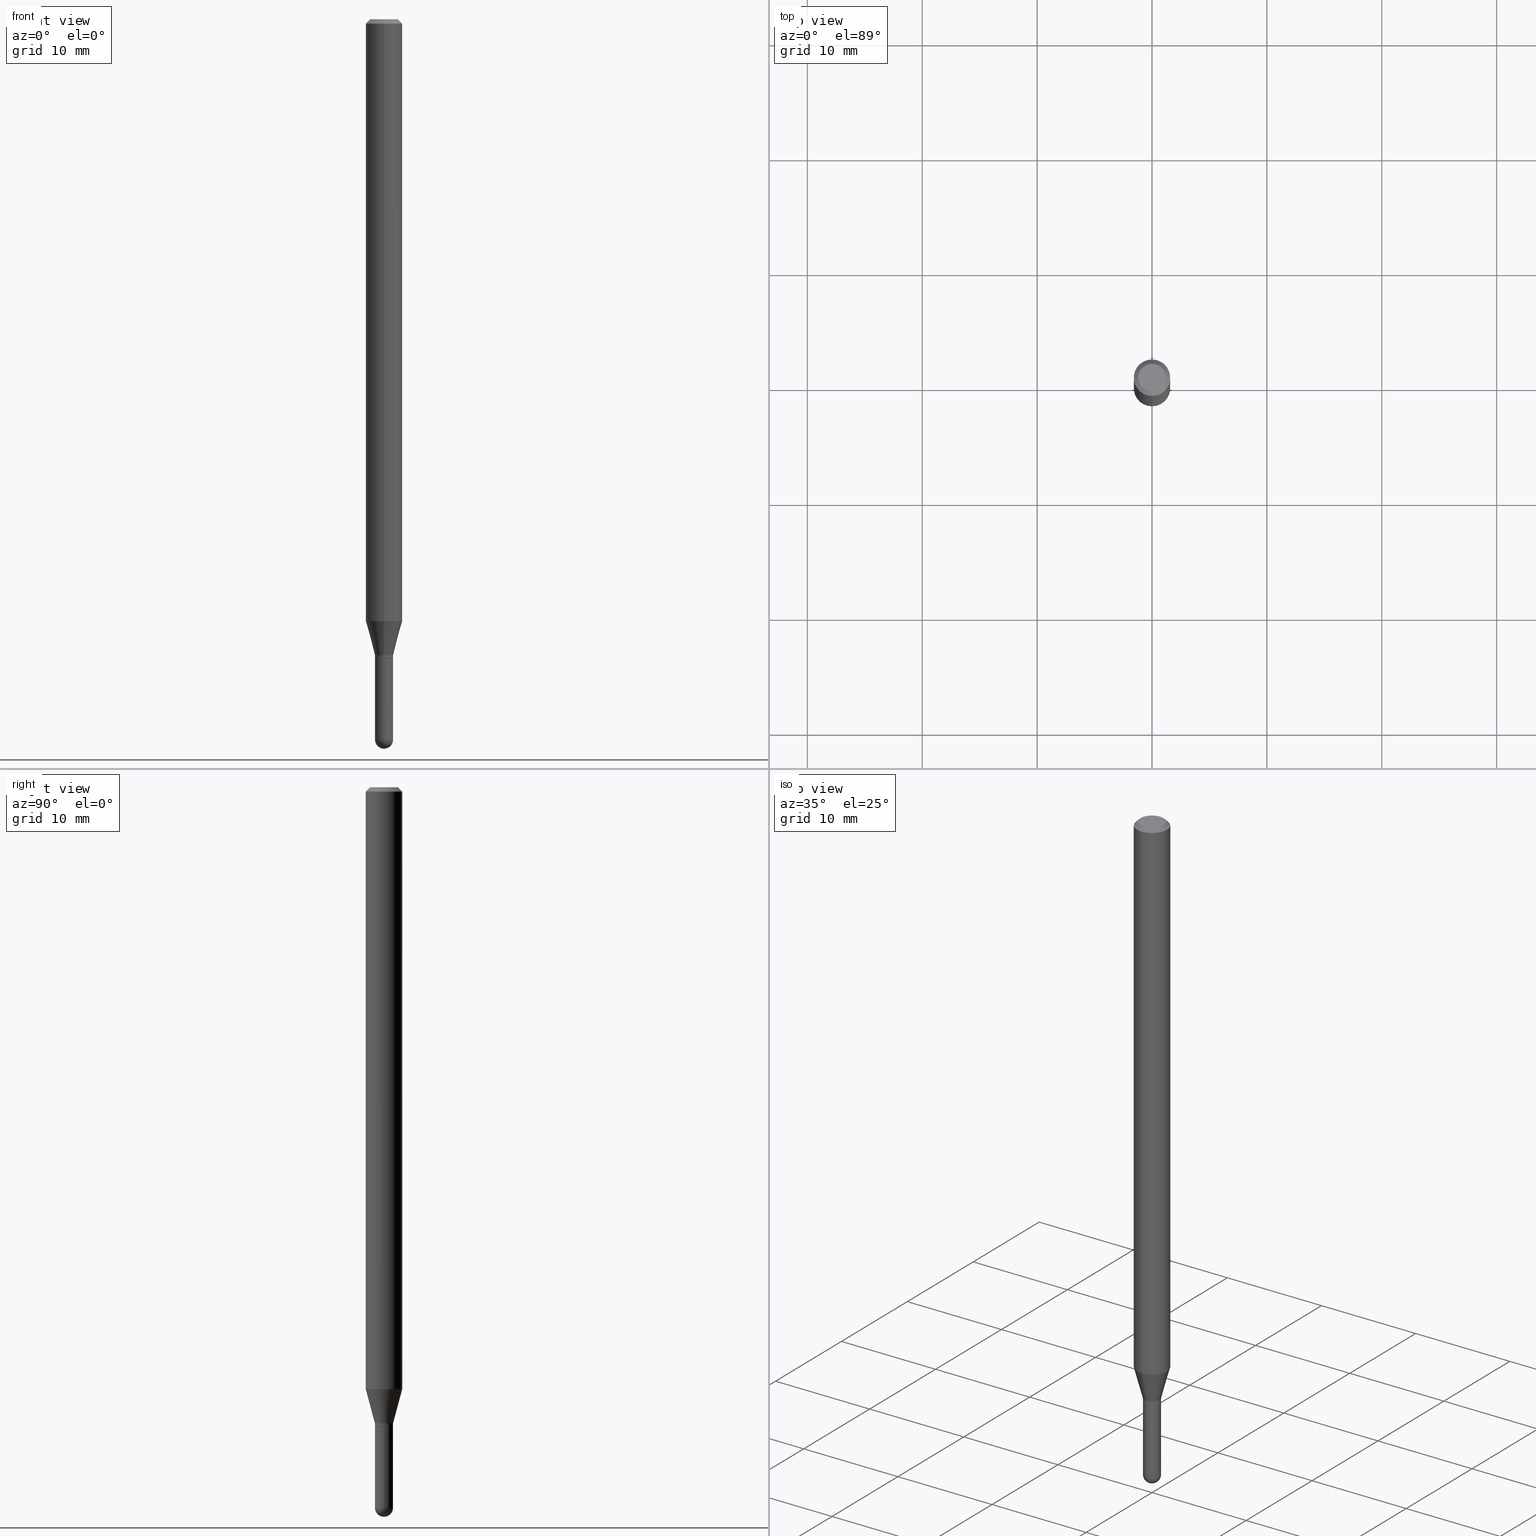
[diagram: canonical four-view strip — front | top / right | iso, engineering-drawing reading convention]
A machine part, canonical four-view strip (front | top / right | iso — engineering-drawing reading convention). The complete STEP part file that produces these views, byte-faithful:
ISO-10303-21;
HEADER;
FILE_DESCRIPTION (( 'STEP AP203' ),
    '1' );
FILE_NAME ('00965.STEP',
    '2024-03-07T19:17:26',
    ( '' ),
    ( '' ),
    'SwSTEP 2.0',
    'SolidWorks 2023',
    '' );
FILE_SCHEMA (( 'CONFIG_CONTROL_DESIGN' ));
ENDSEC;

DATA;
#1 = LENGTH_MEASURE_WITH_UNIT ( LENGTH_MEASURE( 0.02539999999999999897 ), #42 );
#2 = APPROVAL ( #124, 'UNSPECIFIED' ) ;
#3 =( NAMED_UNIT ( * ) PLANE_ANGLE_UNIT ( ) SI_UNIT ( $, .RADIAN. ) );
#4 = AXIS2_PLACEMENT_3D ( 'NONE', #187, #263, #79 ) ;
#5 = CIRCLE ( 'NONE', #385, 0.03099999999999987835 ) ;
#6 = DIRECTION ( 'NONE',  ( 0.000000000000000000, 0.000000000000000000, 1.000000000000000000 ) ) ;
#7 = ORIENTED_EDGE ( 'NONE', *, *, #144, .T. ) ;
#8 = APPLICATION_PROTOCOL_DEFINITION ( 'international standard', 'config_control_design', 1994, #213 ) ;
#9 = ADVANCED_FACE ( 'NONE', ( #186 ), #339, .T. ) ;
#10 = EDGE_LOOP ( 'NONE', ( #139, #216, #464, #363 ) ) ;
#11 = EDGE_LOOP ( 'NONE', ( #498, #368, #67, #395, #334 ) ) ;
#12 = APPROVAL_DATE_TIME ( #326, #202 ) ;
#13 = DIRECTION ( 'NONE',  ( -6.982962677686265922E-15, -1.000000000000000000, 4.370956789862821150E-15 ) ) ;
#14 = DATE_AND_TIME ( #322, #198 ) ;
#15 = DIRECTION ( 'NONE',  ( 1.000000000000000000, -6.982962677686270655E-15, 0.000000000000000000 ) ) ;
#16 = DATE_AND_TIME ( #236, #490 ) ;
#17 = DIRECTION ( 'NONE',  ( -6.982962677686265922E-15, -1.000000000000000000, 0.000000000000000000 ) ) ;
#18 = VERTEX_POINT ( 'NONE', #35 ) ;
#19 = CARTESIAN_POINT ( 'NONE',  ( -2.164718430082737148E-16, -0.03099999999999992345, 1.082354158746436707E-16 ) ) ;
#20 = FACE_OUTER_BOUND ( 'NONE', #506, .T. ) ;
#21 = APPROVAL_PERSON_ORGANIZATION ( #97, #202, #443 ) ;
#22 = CARTESIAN_POINT ( 'NONE',  ( 5.331146826923287692E-29, -7.611393761507219858E-15, -2.180000000000000160 ) ) ;
#23 = EDGE_CURVE ( 'NONE', #309, #37, #227, .T. ) ;
#24 = DIRECTION ( 'NONE',  ( -6.982962677686265922E-15, -1.000000000000000000, 0.000000000000000000 ) ) ;
#25 = DIRECTION ( 'NONE',  ( -2.445468806185136597E-29, 3.491481338843145583E-15, 1.000000000000000000 ) ) ;
#26 = CARTESIAN_POINT ( 'NONE',  ( 3.668220293754557539E-31, -5.237197542321484358E-17, -0.01500000000000000812 ) ) ;
#27 = AXIS2_PLACEMENT_3D ( 'NONE', #191, #352, #492 ) ;
#28 = AXIS2_PLACEMENT_3D ( 'NONE', #431, #264, #344 ) ;
#29 = ORIENTED_EDGE ( 'NONE', *, *, #215, .F. ) ;
#30 = CIRCLE ( 'NONE', #239, 0.03099999999999999978 ) ;
#31 = CARTESIAN_POINT ( 'NONE',  ( 6.035211466974647334E-29, -8.624263830681084699E-15, -2.469000000000000306 ) ) ;
#32 = FACE_OUTER_BOUND ( 'NONE', #435, .T. ) ;
#33 = ADVANCED_FACE ( 'NONE', ( #510 ), #184, .T. ) ;
#34 = CARTESIAN_POINT ( 'NONE',  ( 6.035211466974647334E-29, -8.624263830681084699E-15, -2.469000000000000306 ) ) ;
#35 = CARTESIAN_POINT ( 'NONE',  ( 4.440892098501133005E-16, 0.06249999999999995143, -0.01500000000000022669 ) ) ;
#36 = CARTESIAN_POINT ( 'NONE',  ( 0.000000000000000000, 0.000000000000000000, 0.000000000000000000 ) ) ;
#37 = VERTEX_POINT ( 'NONE', #300 ) ;
#38 = CARTESIAN_POINT ( 'NONE',  ( 0.000000000000000000, 0.000000000000000000, 0.000000000000000000 ) ) ;
#39 = CARTESIAN_POINT ( 'NONE',  ( 3.840629472727447874E-16, 0.04749999999999999362, -1.747056831868805136E-16 ) ) ;
#40 = CLOSED_SHELL ( 'NONE', ( #451, #86, #188, #444, #33 ) ) ;
#41 = ORIENTED_EDGE ( 'NONE', *, *, #469, .T. ) ;
#42 =( LENGTH_UNIT ( ) NAMED_UNIT ( * ) SI_UNIT ( $, .METRE. ) );
#43 = ORIENTED_EDGE ( 'NONE', *, *, #333, .T. ) ;
#44 = APPLICATION_PROTOCOL_DEFINITION ( 'international standard', 'config_control_design', 1994, #52 ) ;
#45 = EDGE_CURVE ( 'NONE', #226, #18, #277, .T. ) ;
#46 = ORIENTED_EDGE ( 'NONE', *, *, #181, .F. ) ;
#47 = AXIS2_PLACEMENT_3D ( 'NONE', #320, #128, #407 ) ;
#48 = CIRCLE ( 'NONE', #441, 0.03099999999999999978 ) ;
#49 = AXIS2_PLACEMENT_3D ( 'NONE', #473, #194, #230 ) ;
#50 = CYLINDRICAL_SURFACE ( 'NONE', #121, 0.06250000000000000000 ) ;
#51 = EDGE_CURVE ( 'NONE', #457, #18, #111, .T. ) ;
#52 = APPLICATION_CONTEXT ( 'configuration controlled 3d designs of mechanical parts and assemblies' ) ;
#53 = VERTEX_POINT ( 'NONE', #467 ) ;
#54 = SHAPE_DEFINITION_REPRESENTATION ( #89, #350 ) ;
#55 = PERSON_AND_ORGANIZATION_ROLE ( 'design_supplier' ) ;
#56 = CARTESIAN_POINT ( 'NONE',  ( -2.164718430082208858E-16, -0.03100000000000767419, -2.189500000000000224 ) ) ;
#57 = CIRCLE ( 'NONE', #311, 0.03099999999999992345 ) ;
#58 = DATE_TIME_ROLE ( 'classification_date' ) ;
#59 = LINE ( 'NONE', #62, #354 ) ;
#60 = ADVANCED_FACE ( 'NONE', ( #471 ), #116, .T. ) ;
#61 = PERSON_AND_ORGANIZATION ( #211, #233 ) ;
#62 = CARTESIAN_POINT ( 'NONE',  ( -4.364351673553916201E-16, -0.06250000000000000000, 2.182165642633950172E-16 ) ) ;
#63 = VERTEX_POINT ( 'NONE', #179 ) ;
#64 = FACE_OUTER_BOUND ( 'NONE', #494, .T. ) ;
#65 = LINE ( 'NONE', #68, #362 ) ;
#66 = VECTOR ( 'NONE', #348, 39.37007874015748143 ) ;
#67 = ORIENTED_EDGE ( 'NONE', *, *, #294, .F. ) ;
#68 = CARTESIAN_POINT ( 'NONE',  ( 2.167155344068840712E-16, 0.03049999999999235267, -2.189999999999999947 ) ) ;
#69 = ORIENTED_EDGE ( 'NONE', *, *, #294, .T. ) ;
#70 = DIRECTION ( 'NONE',  ( -2.445480195836370000E-29, 3.491465028214320670E-15, 1.000000000000000000 ) ) ;
#71 = EDGE_LOOP ( 'NONE', ( #157, #265, #199, #80, #162 ) ) ;
#72 = DIRECTION ( 'NONE',  ( 6.982962677686265922E-15, 1.000000000000000000, 0.000000000000000000 ) ) ;
#73 = CARTESIAN_POINT ( 'NONE',  ( 0.03099999999999999978, -2.164718430082742572E-16, 1.511614800496739984E-30 ) ) ;
#74 = AXIS2_PLACEMENT_3D ( 'NONE', #324, #138, #360 ) ;
#75 = CARTESIAN_POINT ( 'NONE',  ( -0.03099999999999999978, -7.913137530749477307E-15, -2.469000000000000306 ) ) ;
#76 = ORIENTED_EDGE ( 'NONE', *, *, #470, .T. ) ;
#77 = PRODUCT_RELATED_PRODUCT_CATEGORY ( 'detail', '', ( #231 ) ) ;
#78 = VERTEX_POINT ( 'NONE', #255 ) ;
#79 = DIRECTION ( 'NONE',  ( 6.982962677686265922E-15, 1.000000000000000000, 0.000000000000000000 ) ) ;
#80 = ORIENTED_EDGE ( 'NONE', *, *, #23, .T. ) ;
#81 = ORIENTED_EDGE ( 'NONE', *, *, #472, .F. ) ;
#82 = CARTESIAN_POINT ( 'NONE',  ( 5.331146826923287692E-29, -7.611393761507219858E-15, -2.180000000000000160 ) ) ;
#83 = DIRECTION ( 'NONE',  ( -1.807323732225328562E-15, -0.2588190451025179639, 0.9659258262890690894 ) ) ;
#84 = CONICAL_SURFACE ( 'NONE', #361, 0.03099999999999992345, 0.2617993877991500740 ) ;
#85 = CIRCLE ( 'NONE', #384, 0.03049999999999999586 ) ;
#86 = ADVANCED_FACE ( 'NONE', ( #505 ), #509, .T. ) ;
#87 = ADVANCED_FACE ( 'NONE', ( #428 ), #336, .F. ) ;
#88 = ORIENTED_EDGE ( 'NONE', *, *, #507, .T. ) ;
#89 = PRODUCT_DEFINITION_SHAPE ( 'NONE', 'NONE',  #323 ) ;
#90 = AXIS2_PLACEMENT_3D ( 'NONE', #209, #167, #280 ) ;
#91 = DATE_TIME_ROLE ( 'creation_date' ) ;
#92 = COORDINATED_UNIVERSAL_TIME_OFFSET ( 5, 0, .BEHIND. ) ;
#93 = CARTESIAN_POINT ( 'NONE',  ( 0.03099999999999999978, -8.349877621843383680E-15, -2.469000000000000306 ) ) ;
#94 = DIRECTION ( 'NONE',  ( 1.000000000000000000, -6.982962677686270655E-15, 0.000000000000000000 ) ) ;
#95 = VECTOR ( 'NONE', #178, 39.37007874015748143 ) ;
#96 = CARTESIAN_POINT ( 'NONE',  ( -2.164718430082203928E-16, -0.03100000000000753195, -2.180000000000000160 ) ) ;
#97 = PERSON_AND_ORGANIZATION ( #211, #233 ) ;
#98 = DIRECTION ( 'NONE',  ( 1.839019923739598738E-15, 0.2588190451025247363, 0.9659258262890673130 ) ) ;
#99 = DIRECTION ( 'NONE',  ( 6.982962677686265922E-15, 1.000000000000000000, -3.483106191921935554E-15 ) ) ;
#100 = EDGE_CURVE ( 'NONE', #78, #481, #511, .T. ) ;
#101 = VERTEX_POINT ( 'NONE', #39 ) ;
#102 = PLANE ( 'NONE',  #500 ) ;
#103 = VECTOR ( 'NONE', #459, 39.37007874015748143 ) ;
#104 = ORIENTED_EDGE ( 'NONE', *, *, #235, .T. ) ;
#105 = LINE ( 'NONE', #257, #262 ) ;
#106 = DIRECTION ( 'NONE',  ( 1.000000000000000000, -6.982962677686266711E-15, 4.876176775795935232E-29 ) ) ;
#107 = FACE_OUTER_BOUND ( 'NONE', #11, .T. ) ;
#108 = DIRECTION ( 'NONE',  ( -6.982962677686265922E-15, -1.000000000000000000, 3.491465028214320276E-15 ) ) ;
#109 = ORIENTED_EDGE ( 'NONE', *, *, #45, .T. ) ;
#110 = CARTESIAN_POINT ( 'NONE',  ( 2.202682480856832688E-16, 0.03099999999999216924, -2.189500000000000224 ) ) ;
#111 = LINE ( 'NONE', #425, #66 ) ;
#112 = LOCAL_TIME ( 14, 17, 26.00000000000000000, #366 ) ;
#113 = ORIENTED_EDGE ( 'NONE', *, *, #223, .F. ) ;
#114 = AXIS2_PLACEMENT_3D ( 'NONE', #325, #416, #99 ) ;
#115 = CARTESIAN_POINT ( 'NONE',  ( 6.112346507714613972E-29, -8.730601549646543009E-15, -2.500000000000000000 ) ) ;
#116 = CYLINDRICAL_SURFACE ( 'NONE', #173, 0.03099999999999992345 ) ;
#117 = EDGE_LOOP ( 'NONE', ( #342, #46 ) ) ;
#118 = DIRECTION ( 'NONE',  ( -6.982962677686265922E-15, -1.000000000000000000, 3.491465028214320276E-15 ) ) ;
#119 = DIRECTION ( 'NONE',  ( -6.982962677686265922E-15, -1.000000000000000000, 0.000000000000000000 ) ) ;
#120 = UNCERTAINTY_MEASURE_WITH_UNIT (LENGTH_MEASURE( 1.000000000000000082E-05 ), #430, 'distance_accuracy_value', 'NONE');
#121 = AXIS2_PLACEMENT_3D ( 'NONE', #38, #394, #118 ) ;
#122 =( NAMED_UNIT ( * ) SI_UNIT ( $, .STERADIAN. ) SOLID_ANGLE_UNIT ( ) );
#123 = ORIENTED_EDGE ( 'NONE', *, *, #485, .F. ) ;
#124 = APPROVAL_STATUS ( 'not_yet_approved' ) ;
#125 = ORIENTED_EDGE ( 'NONE', *, *, #507, .F. ) ;
#126 = PERSON_AND_ORGANIZATION_ROLE ( 'classification_officer' ) ;
#127 = AXIS2_PLACEMENT_3D ( 'NONE', #214, #462, #108 ) ;
#128 = DIRECTION ( 'NONE',  ( -2.445468806185136597E-29, 3.491481338843145583E-15, 1.000000000000000000 ) ) ;
#129 = CARTESIAN_POINT ( 'NONE',  ( 6.037862482471103495E-29, -8.620467425603728566E-15, -2.469000000000000306 ) ) ;
#130 = CALENDAR_DATE ( 2024, 7, 3 ) ;
#131 = APPROVAL_PERSON_ORGANIZATION ( #195, #2, #274 ) ;
#132 = DIRECTION ( 'NONE',  ( -2.445480195836370000E-29, 3.491465028214320670E-15, 1.000000000000000000 ) ) ;
#133 = CIRCLE ( 'NONE', #27, 0.03099999999999992345 ) ;
#134 = EDGE_LOOP ( 'NONE', ( #317, #76, #81, #417 ) ) ;
#135 = ADVANCED_FACE ( 'NONE', ( #502 ), #197, .T. ) ;
#136 = DIRECTION ( 'NONE',  ( -2.445480195836370000E-29, 3.491465028214320670E-15, 1.000000000000000000 ) ) ;
#137 = ORIENTED_EDGE ( 'NONE', *, *, #365, .T. ) ;
#138 = DIRECTION ( 'NONE',  ( -2.445480195836370000E-29, 3.491465028214320670E-15, 1.000000000000000000 ) ) ;
#139 = ORIENTED_EDGE ( 'NONE', *, *, #483, .T. ) ;
#140 = EDGE_LOOP ( 'NONE', ( #487, #349, #268, #29 ) ) ;
#141 = DIRECTION ( 'NONE',  ( -6.982962677686266711E-15, -1.000000000000000000, 3.491465028214321065E-15 ) ) ;
#142 = LINE ( 'NONE', #297, #103 ) ;
#143 = DIRECTION ( 'NONE',  ( -2.445480195836369720E-29, 3.491465028214321065E-15, 1.000000000000000000 ) ) ;
#144 = EDGE_CURVE ( 'NONE', #53, #226, #142, .T. ) ;
#145 = CIRCLE ( 'NONE', #4, 0.03099999999999987835 ) ;
#146 = CARTESIAN_POINT ( 'NONE',  ( 5.331146826923287692E-29, -7.611393761507219858E-15, -2.180000000000000160 ) ) ;
#147 = CARTESIAN_POINT ( 'NONE',  ( 2.164718430083341860E-16, 0.03099999999999131575, -2.469000000000000306 ) ) ;
#148 = DIRECTION ( 'NONE',  ( 1.000000000000000000, -6.982962677686266711E-15, 4.876176775795935232E-29 ) ) ;
#149 = CARTESIAN_POINT ( 'NONE',  ( 6.035211466974647334E-29, -8.624263830681084699E-15, -2.469000000000000306 ) ) ;
#150 = DIRECTION ( 'NONE',  ( 6.982962677686265922E-15, 1.000000000000000000, 0.000000000000000000 ) ) ;
#151 = CIRCLE ( 'NONE', #450, 0.03099999999999992345 ) ;
#152 = VERTEX_POINT ( 'NONE', #147 ) ;
#153 = VECTOR ( 'NONE', #364, 39.37007874015748143 ) ;
#154 = CARTESIAN_POINT ( 'NONE',  ( 0.000000000000000000, 0.000000000000000000, 0.000000000000000000 ) ) ;
#155 = ADVANCED_FACE ( 'NONE', ( #252 ), #420, .T. ) ;
#156 = ORIENTED_EDGE ( 'NONE', *, *, #508, .T. ) ;
#157 = ORIENTED_EDGE ( 'NONE', *, *, #169, .F. ) ;
#158 = AXIS2_PLACEMENT_3D ( 'NONE', #237, #284, #196 ) ;
#159 = CIRCLE ( 'NONE', #427, 0.03099999999999999978 ) ;
#160 = DIRECTION ( 'NONE',  ( 1.000000000000000000, 0.000000000000000000, 0.000000000000000000 ) ) ;
#161 = APPROVAL ( #449, 'UNSPECIFIED' ) ;
#162 = ORIENTED_EDGE ( 'NONE', *, *, #376, .F. ) ;
#163 = DATE_AND_TIME ( #442, #306 ) ;
#164 = ORIENTED_EDGE ( 'NONE', *, *, #100, .T. ) ;
#165 = ADVANCED_FACE ( 'NONE', ( #32 ), #319, .T. ) ;
#166 = APPROVAL_DATE_TIME ( #16, #2 ) ;
#167 = DIRECTION ( 'NONE',  ( -2.445480195836370000E-29, 3.491465028214320670E-15, 1.000000000000000000 ) ) ;
#168 = FACE_OUTER_BOUND ( 'NONE', #220, .T. ) ;
#169 = EDGE_CURVE ( 'NONE', #397, #63, #204, .T. ) ;
#170 = VERTEX_POINT ( 'NONE', #245 ) ;
#171 = AXIS2_PLACEMENT_3D ( 'NONE', #330, #200, #13 ) ;
#172 = DIRECTION ( 'NONE',  ( -6.982962677686265922E-15, -1.000000000000000000, 3.491465028214321065E-15 ) ) ;
#173 = AXIS2_PLACEMENT_3D ( 'NONE', #36, #305, #392 ) ;
#174 = CC_DESIGN_APPROVAL ( #161, ( #476 ) ) ;
#175 = CARTESIAN_POINT ( 'NONE',  ( 5.355576685545449192E-29, -7.646344132066488554E-15, -2.189999999999999947 ) ) ;
#176 = DIRECTION ( 'NONE',  ( -2.445480195836370000E-29, 3.491465028214320670E-15, 1.000000000000000000 ) ) ;
#177 = DIRECTION ( 'NONE',  ( -1.000000000000000000, 6.982962677686265922E-15, -4.876176775795935793E-29 ) ) ;
#178 = DIRECTION ( 'NONE',  ( 4.937700262164548042E-15, 0.7071067811865451302, -0.7071067811865499042 ) ) ;
#179 = CARTESIAN_POINT ( 'NONE',  ( -0.03099999999999999978, -7.913137530749477307E-15, -2.189999999999999947 ) ) ;
#180 = VECTOR ( 'NONE', #258, 39.37007874015748143 ) ;
#181 = EDGE_CURVE ( 'NONE', #481, #78, #85, .T. ) ;
#182 =( GEOMETRIC_REPRESENTATION_CONTEXT ( 3 ) GLOBAL_UNCERTAINTY_ASSIGNED_CONTEXT ( ( #120 ) ) GLOBAL_UNIT_ASSIGNED_CONTEXT ( ( #430, #3, #122 ) ) REPRESENTATION_CONTEXT ( 'NONE', 'WORKASPACE' ) );
#183 = CYLINDRICAL_SURFACE ( 'NONE', #312, 0.03099999999999999978 ) ;
#184 = CYLINDRICAL_SURFACE ( 'NONE', #484, 0.03099999999999999978 ) ;
#185 = DIRECTION ( 'NONE',  ( 1.000000000000000000, -6.982962677686270655E-15, 0.000000000000000000 ) ) ;
#186 = FACE_OUTER_BOUND ( 'NONE', #351, .T. ) ;
#187 = CARTESIAN_POINT ( 'NONE',  ( 6.035211466974647334E-29, -8.624263830681084699E-15, -2.469000000000000306 ) ) ;
#188 = ADVANCED_FACE ( 'NONE', ( #168 ), #291, .F. ) ;
#189 = ORIENTED_EDGE ( 'NONE', *, *, #144, .F. ) ;
#190 = AXIS2_PLACEMENT_3D ( 'NONE', #303, #463, #225 ) ;
#191 = CARTESIAN_POINT ( 'NONE',  ( 5.354378888783732233E-29, -7.644562679275256159E-15, -2.189500000000000224 ) ) ;
#192 = DIRECTION ( 'NONE',  ( -6.982962677686265922E-15, -1.000000000000000000, 0.000000000000000000 ) ) ;
#193 = VERTEX_POINT ( 'NONE', #96 ) ;
#194 = DIRECTION ( 'NONE',  ( -2.445480195836370000E-29, 3.491465028214320670E-15, 1.000000000000000000 ) ) ;
#195 = PERSON_AND_ORGANIZATION ( #211, #233 ) ;
#196 = DIRECTION ( 'NONE',  ( 6.982962677686265922E-15, 1.000000000000000000, -3.483106191921935554E-15 ) ) ;
#197 = CONICAL_SURFACE ( 'NONE', #432, 0.03099999999999992345, 0.2617993877991500740 ) ;
#198 = LOCAL_TIME ( 14, 17, 26.00000000000000000, #401 ) ;
#199 = ORIENTED_EDGE ( 'NONE', *, *, #250, .T. ) ;
#200 = DIRECTION ( 'NONE',  ( -2.445480195836370000E-29, 3.491465028214320670E-15, 1.000000000000000000 ) ) ;
#201 = ADVANCED_FACE ( 'NONE', ( #20 ), #84, .T. ) ;
#202 = APPROVAL ( #276, 'UNSPECIFIED' ) ;
#203 = DIRECTION ( 'NONE',  ( 5.024295867788190974E-15, 0.7071067811865681119, 0.7071067811865270336 ) ) ;
#204 = LINE ( 'NONE', #446, #298 ) ;
#205 = APPROVAL_DATE_TIME ( #163, #161 ) ;
#206 = EDGE_CURVE ( 'NONE', #212, #193, #499, .T. ) ;
#207 = CC_DESIGN_PERSON_AND_ORGANIZATION_ASSIGNMENT ( #61, #486, ( #323 ) ) ;
#208 = ORIENTED_EDGE ( 'NONE', *, *, #373, .F. ) ;
#209 = CARTESIAN_POINT ( 'NONE',  ( 5.355601628881650426E-29, -7.646308411789361838E-15, -2.189999999999999947 ) ) ;
#210 = CIRCLE ( 'NONE', #219, 0.03099999999999999978 ) ;
#211 = PERSON ( 'UNSPECIFIED', 'UNSPECIFIED', 'UNSPECIFIED', ('UNSPECIFIED'), ('UNSPECIFIED'), ('UNSPECIFIED') ) ;
#212 = VERTEX_POINT ( 'NONE', #56 ) ;
#213 = APPLICATION_CONTEXT ( 'configuration controlled 3d designs of mechanical parts and assemblies' ) ;
#214 = CARTESIAN_POINT ( 'NONE',  ( 0.000000000000000000, 0.000000000000000000, 0.000000000000000000 ) ) ;
#215 = EDGE_CURVE ( 'NONE', #170, #226, #59, .T. ) ;
#216 = ORIENTED_EDGE ( 'NONE', *, *, #412, .T. ) ;
#217 = CARTESIAN_POINT ( 'NONE',  ( 2.166963073829317707E-46, -3.093820102321168662E-32, -8.861094346700290672E-18 ) ) ;
#218 = DIRECTION ( 'NONE',  ( -2.445468806185136597E-29, 3.491481338843145583E-15, 1.000000000000000000 ) ) ;
#219 = AXIS2_PLACEMENT_3D ( 'NONE', #247, #402, #15 ) ;
#220 = EDGE_LOOP ( 'NONE', ( #69, #273 ) ) ;
#221 = ADVANCED_FACE ( 'NONE', ( #241 ), #102, .F. ) ;
#222 = ORIENTED_EDGE ( 'NONE', *, *, #365, .F. ) ;
#223 = EDGE_CURVE ( 'NONE', #18, #226, #426, .T. ) ;
#224 = DIRECTION ( 'NONE',  ( -4.937700262164674260E-15, -0.7071067811865632269, 0.7071067811865319186 ) ) ;
#225 = DIRECTION ( 'NONE',  ( -6.982962677686265922E-15, -1.000000000000000000, 3.491465028214320670E-15 ) ) ;
#226 = VERTEX_POINT ( 'NONE', #248 ) ;
#227 = LINE ( 'NONE', #73, #180 ) ;
#228 = DESIGN_CONTEXT ( 'detailed design', #52, 'design' ) ;
#229 = VERTEX_POINT ( 'NONE', #455 ) ;
#230 = DIRECTION ( 'NONE',  ( -6.982962677686265922E-15, -1.000000000000000000, 4.370956789862821150E-15 ) ) ;
#231 = PRODUCT ( '00965', '00965', '', ( #357 ) ) ;
#232 = ORIENTED_EDGE ( 'NONE', *, *, #412, .F. ) ;
#233 = ORGANIZATION ( 'UNSPECIFIED', 'UNSPECIFIED', '' ) ;
#234 = AXIS2_PLACEMENT_3D ( 'NONE', #387, #383, #119 ) ;
#235 = EDGE_CURVE ( 'NONE', #481, #353, #65, .T. ) ;
#236 = CALENDAR_DATE ( 2024, 7, 3 ) ;
#237 = CARTESIAN_POINT ( 'NONE',  ( 3.668220293754557539E-31, -5.237197542321484358E-17, -0.01500000000000000812 ) ) ;
#238 = PERSON_AND_ORGANIZATION ( #211, #233 ) ;
#239 = AXIS2_PLACEMENT_3D ( 'NONE', #379, #25, #185 ) ;
#240 = CC_DESIGN_SECURITY_CLASSIFICATION ( #476, ( #501 ) ) ;
#241 = FACE_OUTER_BOUND ( 'NONE', #117, .T. ) ;
#242 = CARTESIAN_POINT ( 'NONE',  ( 5.355601628881650426E-29, -7.646308411789361838E-15, -2.189999999999999947 ) ) ;
#243 = PERSON_AND_ORGANIZATION_ROLE ( 'creator' ) ;
#244 = DIRECTION ( 'NONE',  ( -2.445480195836370000E-29, 3.491465028214320670E-15, 1.000000000000000000 ) ) ;
#245 = CARTESIAN_POINT ( 'NONE',  ( -4.364351673553413795E-16, -0.06250000000000723033, -2.062440399561580318 ) ) ;
#246 = ORIENTED_EDGE ( 'NONE', *, *, #51, .F. ) ;
#247 = CARTESIAN_POINT ( 'NONE',  ( 6.037862482471103495E-29, -8.620467425603728566E-15, -2.469000000000000306 ) ) ;
#248 = CARTESIAN_POINT ( 'NONE',  ( -4.364351673553912750E-16, -0.06250000000000005551, -0.01499999999999979128 ) ) ;
#249 = ORIENTED_EDGE ( 'NONE', *, *, #485, .T. ) ;
#250 = EDGE_CURVE ( 'NONE', #229, #309, #261, .T. ) ;
#251 = DIRECTION ( 'NONE',  ( -1.000000000000000000, 7.105427357601001070E-15, -4.926315508542082329E-29 ) ) ;
#252 = FACE_OUTER_BOUND ( 'NONE', #140, .T. ) ;
#253 = MANIFOLD_SOLID_BREP ( 'Body-Move/Copy2[1]', #40 ) ;
#254 = SPHERICAL_SURFACE ( 'NONE', #283, 0.03099999999999987835 ) ;
#255 = CARTESIAN_POINT ( 'NONE',  ( -2.129803616693775335E-16, -0.03050000000000764253, -2.189999999999999947 ) ) ;
#256 = ORIENTED_EDGE ( 'NONE', *, *, #206, .T. ) ;
#257 = CARTESIAN_POINT ( 'NONE',  ( -2.129803616693775335E-16, -0.03050000000000764253, -2.189999999999999947 ) ) ;
#258 = DIRECTION ( 'NONE',  ( -2.445468806185136877E-29, 3.491481338843145188E-15, 1.000000000000000000 ) ) ;
#259 = CC_DESIGN_APPROVAL ( #2, ( #323 ) ) ;
#260 = ADVANCED_FACE ( 'NONE', ( #409 ), #468, .T. ) ;
#261 = CIRCLE ( 'NONE', #307, 0.03099999999999999978 ) ;
#262 = VECTOR ( 'NONE', #224, 39.37007874015748143 ) ;
#263 = DIRECTION ( 'NONE',  ( 1.000000000000000000, -6.982962677686265922E-15, 4.883557194083112340E-29 ) ) ;
#264 = DIRECTION ( 'NONE',  ( 2.445480195836369439E-29, -3.491465028214321065E-15, -1.000000000000000000 ) ) ;
#265 = ORIENTED_EDGE ( 'NONE', *, *, #310, .T. ) ;
#266 = LINE ( 'NONE', #399, #327 ) ;
#267 = DIRECTION ( 'NONE',  ( -2.445480195836370000E-29, 3.491465028214320670E-15, 1.000000000000000000 ) ) ;
#268 = ORIENTED_EDGE ( 'NONE', *, *, #45, .F. ) ;
#269 = AXIS2_PLACEMENT_3D ( 'NONE', #26, #70, #308 ) ;
#270 = CARTESIAN_POINT ( 'NONE',  ( 0.000000000000000000, 0.000000000000000000, 0.000000000000000000 ) ) ;
#271 = VECTOR ( 'NONE', #98, 39.37007874015748854 ) ;
#272 = EDGE_LOOP ( 'NONE', ( #208, #479, #393, #375 ) ) ;
#273 = ORIENTED_EDGE ( 'NONE', *, *, #376, .T. ) ;
#274 = APPROVAL_ROLE ( '' ) ;
#275 = ADVANCED_FACE ( 'NONE', ( #64 ), #398, .T. ) ;
#276 = APPROVAL_STATUS ( 'not_yet_approved' ) ;
#277 = CIRCLE ( 'NONE', #269, 0.06250000000000000000 ) ;
#278 = CC_DESIGN_PERSON_AND_ORGANIZATION_ASSIGNMENT ( #315, #480, ( #231 ) ) ;
#279 = DIRECTION ( 'NONE',  ( -2.445468806185136597E-29, 3.491481338843145583E-15, 1.000000000000000000 ) ) ;
#280 = DIRECTION ( 'NONE',  ( -6.982962677686265922E-15, -1.000000000000000000, 0.000000000000000000 ) ) ;
#281 = DIRECTION ( 'NONE',  ( -2.445468806185136877E-29, 3.491481338843145188E-15, 1.000000000000000000 ) ) ;
#282 = SECURITY_CLASSIFICATION_LEVEL ( 'unclassified' ) ;
#283 = AXIS2_PLACEMENT_3D ( 'NONE', #31, #421, #72 ) ;
#284 = DIRECTION ( 'NONE',  ( 2.445480195836370000E-29, -3.491465028214320670E-15, -1.000000000000000000 ) ) ;
#285 = ORIENTED_EDGE ( 'NONE', *, *, #483, .F. ) ;
#286 = AXIS2_PLACEMENT_3D ( 'NONE', #329, #369, #177 ) ;
#287 = DIRECTION ( 'NONE',  ( -6.982962677686265922E-15, -1.000000000000000000, 0.000000000000000000 ) ) ;
#288 = DATE_AND_TIME ( #482, #112 ) ;
#289 = DIRECTION ( 'NONE',  ( 1.000000000000000000, -6.982962677686270655E-15, 0.000000000000000000 ) ) ;
#290 = EDGE_LOOP ( 'NONE', ( #246, #88, #419, #113 ) ) ;
#291 = PLANE ( 'NONE',  #286 ) ;
#292 = ORIENTED_EDGE ( 'NONE', *, *, #223, .T. ) ;
#293 = DIRECTION ( 'NONE',  ( -2.445468806185136597E-29, 3.491481338843145583E-15, 1.000000000000000000 ) ) ;
#294 = EDGE_CURVE ( 'NONE', #37, #63, #48, .T. ) ;
#295 = ORIENTED_EDGE ( 'NONE', *, *, #333, .F. ) ;
#296 = DIRECTION ( 'NONE',  ( -6.982962677686265922E-15, -1.000000000000000000, 0.000000000000000000 ) ) ;
#297 = CARTESIAN_POINT ( 'NONE',  ( -4.287811248607203282E-16, -0.06250000000000005551, -0.01499999999999979128 ) ) ;
#298 = VECTOR ( 'NONE', #281, 39.37007874015748143 ) ;
#299 = ORIENTED_EDGE ( 'NONE', *, *, #469, .F. ) ;
#300 = CARTESIAN_POINT ( 'NONE',  ( 0.03099999999999999978, -7.862815975074762885E-15, -2.189999999999999947 ) ) ;
#301 = ORIENTED_EDGE ( 'NONE', *, *, #356, .F. ) ;
#302 = CARTESIAN_POINT ( 'NONE',  ( 4.440892098501128074E-16, 0.06249999999999278355, -2.062440399561580762 ) ) ;
#303 = CARTESIAN_POINT ( 'NONE',  ( 0.000000000000000000, 0.000000000000000000, 0.000000000000000000 ) ) ;
#304 = VERTEX_POINT ( 'NONE', #332 ) ;
#305 = DIRECTION ( 'NONE',  ( -2.445480195836370000E-29, 3.491465028214320670E-15, 1.000000000000000000 ) ) ;
#306 = LOCAL_TIME ( 14, 17, 26.00000000000000000, #453 ) ;
#307 = AXIS2_PLACEMENT_3D ( 'NONE', #129, #447, #94 ) ;
#308 = DIRECTION ( 'NONE',  ( -6.982962677686265922E-15, -1.000000000000000000, 3.483106191921935554E-15 ) ) ;
#309 = VERTEX_POINT ( 'NONE', #93 ) ;
#310 = EDGE_CURVE ( 'NONE', #397, #229, #210, .T. ) ;
#311 = AXIS2_PLACEMENT_3D ( 'NONE', #367, #244, #17 ) ;
#312 = AXIS2_PLACEMENT_3D ( 'NONE', #338, #504, #148 ) ;
#313 = CC_DESIGN_PERSON_AND_ORGANIZATION_ASSIGNMENT ( #359, #126, ( #476 ) ) ;
#314 = DIMENSIONAL_EXPONENTS ( 1.000000000000000000, 0.000000000000000000, 0.000000000000000000, 0.000000000000000000, 0.000000000000000000, 0.000000000000000000, 0.000000000000000000 ) ;
#315 = PERSON_AND_ORGANIZATION ( #211, #233 ) ;
#316 = EDGE_CURVE ( 'NONE', #152, #397, #493, .T. ) ;
#317 = ORIENTED_EDGE ( 'NONE', *, *, #331, .T. ) ;
#318 = PERSON_AND_ORGANIZATION ( #211, #233 ) ;
#319 = CONICAL_SURFACE ( 'NONE', #346, 0.03049999999999999586, 0.7853981633974739252 ) ;
#320 = CARTESIAN_POINT ( 'NONE',  ( 6.037862482471103495E-29, -8.620467425603728566E-15, -2.469000000000000306 ) ) ;
#321 = DIRECTION ( 'NONE',  ( -6.982962677686265922E-15, -1.000000000000000000, 0.000000000000000000 ) ) ;
#322 = CALENDAR_DATE ( 2024, 7, 3 ) ;
#323 = PRODUCT_DEFINITION ( 'UNKNOWN', '', #501, #228 ) ;
#324 = CARTESIAN_POINT ( 'NONE',  ( 2.166963073829317707E-46, -3.093820102321168662E-32, -8.861094346700290672E-18 ) ) ;
#325 = CARTESIAN_POINT ( 'NONE',  ( 3.668220293754557539E-31, -5.237197542321484358E-17, -0.01500000000000000812 ) ) ;
#326 = DATE_AND_TIME ( #130, #337 ) ;
#327 = VECTOR ( 'NONE', #83, 39.37007874015748854 ) ;
#328 = CIRCLE ( 'NONE', #475, 0.04749999999999999362 ) ;
#329 = CARTESIAN_POINT ( 'NONE',  ( 2.164718430083277765E-16, 0.03099999999999235312, -2.189999999999999947 ) ) ;
#330 = CARTESIAN_POINT ( 'NONE',  ( 5.043657152220695549E-29, -7.200938527845627265E-15, -2.062440399561580762 ) ) ;
#331 = EDGE_CURVE ( 'NONE', #193, #304, #151, .T. ) ;
#332 = CARTESIAN_POINT ( 'NONE',  ( 3.321787289678984079E-16, 0.03099999999999231148, -2.180000000000000160 ) ) ;
#333 = EDGE_CURVE ( 'NONE', #53, #101, #328, .T. ) ;
#334 = ORIENTED_EDGE ( 'NONE', *, *, #474, .T. ) ;
#335 = DIRECTION ( 'NONE',  ( -2.445480195836369720E-29, 3.491465028214321065E-15, 1.000000000000000000 ) ) ;
#336 = PLANE ( 'NONE',  #28 ) ;
#337 = LOCAL_TIME ( 14, 17, 26.00000000000000000, #92 ) ;
#338 = CARTESIAN_POINT ( 'NONE',  ( 0.000000000000000000, 0.000000000000000000, 0.000000000000000000 ) ) ;
#339 = CYLINDRICAL_SURFACE ( 'NONE', #190, 0.03099999999999992345 ) ;
#340 = CC_DESIGN_DATE_AND_TIME_ASSIGNMENT ( #14, #58, ( #476 ) ) ;
#341 = CARTESIAN_POINT ( 'NONE',  ( 2.202682480856304644E-16, 0.03099999999999992345, -1.082354158746436707E-16 ) ) ;
#342 = ORIENTED_EDGE ( 'NONE', *, *, #100, .F. ) ;
#343 = EDGE_LOOP ( 'NONE', ( #189, #123, #477, #292 ) ) ;
#344 = DIRECTION ( 'NONE',  ( 6.982962677686265922E-15, 1.000000000000000000, -3.491465028214321065E-15 ) ) ;
#345 = ORIENTED_EDGE ( 'NONE', *, *, #470, .F. ) ;
#346 = AXIS2_PLACEMENT_3D ( 'NONE', #411, #452, #24 ) ;
#347 = ORIENTED_EDGE ( 'NONE', *, *, #235, .F. ) ;
#348 = DIRECTION ( 'NONE',  ( -2.445480195836369720E-29, 3.491465028214321065E-15, 1.000000000000000000 ) ) ;
#349 = ORIENTED_EDGE ( 'NONE', *, *, #51, .T. ) ;
#350 = ADVANCED_BREP_SHAPE_REPRESENTATION ( '00965', ( #253, #434, #465 ), #182 ) ;
#351 = EDGE_LOOP ( 'NONE', ( #232, #41, #256, #222 ) ) ;
#352 = DIRECTION ( 'NONE',  ( -2.445480195836370000E-29, 3.491465028214320670E-15, 1.000000000000000000 ) ) ;
#353 = VERTEX_POINT ( 'NONE', #110 ) ;
#354 = VECTOR ( 'NONE', #143, 39.37007874015748143 ) ;
#355 = CIRCLE ( 'NONE', #171, 0.06250000000000000000 ) ;
#356 = EDGE_CURVE ( 'NONE', #78, #212, #105, .T. ) ;
#357 = MECHANICAL_CONTEXT ( 'NONE', #213, 'mechanical' ) ;
#358 = ORIENTED_EDGE ( 'NONE', *, *, #181, .T. ) ;
#359 = PERSON_AND_ORGANIZATION ( #211, #233 ) ;
#360 = DIRECTION ( 'NONE',  ( -6.982962677686266711E-15, -1.000000000000000000, 3.491465028214321065E-15 ) ) ;
#361 = AXIS2_PLACEMENT_3D ( 'NONE', #22, #418, #321 ) ;
#362 = VECTOR ( 'NONE', #203, 39.37007874015748143 ) ;
#363 = ORIENTED_EDGE ( 'NONE', *, *, #206, .F. ) ;
#364 = DIRECTION ( 'NONE',  ( -2.445480195836369720E-29, 3.491465028214321065E-15, 1.000000000000000000 ) ) ;
#365 = EDGE_CURVE ( 'NONE', #304, #193, #381, .T. ) ;
#366 = COORDINATED_UNIVERSAL_TIME_OFFSET ( 5, 0, .BEHIND. ) ;
#367 = CARTESIAN_POINT ( 'NONE',  ( 5.354378888783732233E-29, -7.644562679275256159E-15, -2.189500000000000224 ) ) ;
#368 = ORIENTED_EDGE ( 'NONE', *, *, #169, .T. ) ;
#369 = DIRECTION ( 'NONE',  ( 2.438088387897960049E-29, -3.491481338843145188E-15, -1.000000000000000000 ) ) ;
#370 = CARTESIAN_POINT ( 'NONE',  ( 2.202682480856837865E-16, 0.03099999999999231148, -2.180000000000000160 ) ) ;
#371 = ORIENTED_EDGE ( 'NONE', *, *, #316, .F. ) ;
#372 = DIRECTION ( 'NONE',  ( -2.445480195836369439E-29, 3.491465028214321065E-15, 1.000000000000000000 ) ) ;
#373 = EDGE_CURVE ( 'NONE', #422, #229, #5, .T. ) ;
#374 = CARTESIAN_POINT ( 'NONE',  ( 6.037862482471103495E-29, -8.620467425603728566E-15, -2.469000000000000306 ) ) ;
#375 = ORIENTED_EDGE ( 'NONE', *, *, #250, .F. ) ;
#376 = EDGE_CURVE ( 'NONE', #63, #37, #30, .T. ) ;
#377 = DIRECTION ( 'NONE',  ( 1.000000000000000000, -6.982962677686270655E-15, 0.000000000000000000 ) ) ;
#378 = CC_DESIGN_DATE_AND_TIME_ASSIGNMENT ( #288, #91, ( #323 ) ) ;
#379 = CARTESIAN_POINT ( 'NONE',  ( 5.355576685545449192E-29, -7.646344132066488554E-15, -2.189999999999999947 ) ) ;
#380 = ORIENTED_EDGE ( 'NONE', *, *, #429, .F. ) ;
#381 = CIRCLE ( 'NONE', #438, 0.03099999999999992345 ) ;
#382 = FACE_OUTER_BOUND ( 'NONE', #272, .T. ) ;
#383 = DIRECTION ( 'NONE',  ( -2.445480195836370000E-29, 3.491465028214320670E-15, 1.000000000000000000 ) ) ;
#384 = AXIS2_PLACEMENT_3D ( 'NONE', #242, #456, #489 ) ;
#385 = AXIS2_PLACEMENT_3D ( 'NONE', #34, #251, #388 ) ;
#386 = DIRECTION ( 'NONE',  ( -2.445480195836370000E-29, 3.491465028214320670E-15, 1.000000000000000000 ) ) ;
#387 = CARTESIAN_POINT ( 'NONE',  ( 5.355601628881650426E-29, -7.646308411789361838E-15, -2.189999999999999947 ) ) ;
#388 = DIRECTION ( 'NONE',  ( -7.105427357601001070E-15, -1.000000000000000000, 0.000000000000000000 ) ) ;
#389 = DIRECTION ( 'NONE',  ( -1.000000000000000000, 6.982962677686265922E-15, -4.883557194083112340E-29 ) ) ;
#390 = FACE_OUTER_BOUND ( 'NONE', #290, .T. ) ;
#391 = ORIENTED_EDGE ( 'NONE', *, *, #310, .F. ) ;
#392 = DIRECTION ( 'NONE',  ( -6.982962677686265922E-15, -1.000000000000000000, 3.491465028214320670E-15 ) ) ;
#393 = ORIENTED_EDGE ( 'NONE', *, *, #474, .F. ) ;
#394 = DIRECTION ( 'NONE',  ( -2.445480195836370000E-29, 3.491465028214320670E-15, 1.000000000000000000 ) ) ;
#395 = ORIENTED_EDGE ( 'NONE', *, *, #23, .F. ) ;
#396 = CC_DESIGN_APPROVAL ( #202, ( #501 ) ) ;
#397 = VERTEX_POINT ( 'NONE', #75 ) ;
#398 = CONICAL_SURFACE ( 'NONE', #90, 0.03049999999999999586, 0.7853981633974739252 ) ;
#399 = CARTESIAN_POINT ( 'NONE',  ( -2.164718430082203928E-16, -0.03100000000000753195, -2.180000000000000160 ) ) ;
#400 = APPROVAL_PERSON_ORGANIZATION ( #238, #161, #413 ) ;
#401 = COORDINATED_UNIVERSAL_TIME_OFFSET ( 5, 0, .BEHIND. ) ;
#402 = DIRECTION ( 'NONE',  ( -2.445468806185136597E-29, 3.491481338843145583E-15, 1.000000000000000000 ) ) ;
#403 = DIRECTION ( 'NONE',  ( -6.982962677686265922E-15, -1.000000000000000000, 3.483106191921935554E-15 ) ) ;
#404 = PERSON_AND_ORGANIZATION ( #211, #233 ) ;
#405 = CLOSED_SHELL ( 'NONE', ( #60, #165, #260, #155, #135, #201, #512, #503, #87, #221, #275, #9 ) ) ;
#406 = CIRCLE ( 'NONE', #74, 0.04749999999999999362 ) ;
#407 = DIRECTION ( 'NONE',  ( 1.000000000000000000, -6.982962677686270655E-15, 0.000000000000000000 ) ) ;
#408 = CC_DESIGN_PERSON_AND_ORGANIZATION_ASSIGNMENT ( #318, #55, ( #501 ) ) ;
#409 = FACE_OUTER_BOUND ( 'NONE', #440, .T. ) ;
#410 = LINE ( 'NONE', #370, #271 ) ;
#411 = CARTESIAN_POINT ( 'NONE',  ( 5.355601628881650426E-29, -7.646308411789361838E-15, -2.189999999999999947 ) ) ;
#412 = EDGE_CURVE ( 'NONE', #353, #304, #461, .T. ) ;
#413 = APPROVAL_ROLE ( '' ) ;
#414 = EDGE_CURVE ( 'NONE', #101, #18, #424, .T. ) ;
#415 = EDGE_LOOP ( 'NONE', ( #380, #460, #391, #371 ) ) ;
#416 = DIRECTION ( 'NONE',  ( 2.445480195836370000E-29, -3.491465028214320670E-15, -1.000000000000000000 ) ) ;
#417 = ORIENTED_EDGE ( 'NONE', *, *, #508, .F. ) ;
#418 = DIRECTION ( 'NONE',  ( -2.445480195836370000E-29, 3.491465028214320670E-15, 1.000000000000000000 ) ) ;
#419 = ORIENTED_EDGE ( 'NONE', *, *, #215, .T. ) ;
#420 = CYLINDRICAL_SURFACE ( 'NONE', #127, 0.06250000000000000000 ) ;
#421 = DIRECTION ( 'NONE',  ( -1.000000000000000000, 6.982962677686265922E-15, -4.883557194083112340E-29 ) ) ;
#422 = VERTEX_POINT ( 'NONE', #115 ) ;
#423 = VECTOR ( 'NONE', #335, 39.37007874015748143 ) ;
#424 = LINE ( 'NONE', #466, #95 ) ;
#425 = CARTESIAN_POINT ( 'NONE',  ( 4.440892098500625669E-16, 0.06250000000000000000, -2.182165642633950172E-16 ) ) ;
#426 = CIRCLE ( 'NONE', #491, 0.06250000000000000000 ) ;
#427 = AXIS2_PLACEMENT_3D ( 'NONE', #374, #279, #289 ) ;
#428 = FACE_OUTER_BOUND ( 'NONE', #436, .T. ) ;
#429 = EDGE_CURVE ( 'NONE', #422, #152, #145, .T. ) ;
#430 =( CONVERSION_BASED_UNIT ( 'INCH', #1 ) LENGTH_UNIT ( ) NAMED_UNIT ( #314 ) );
#431 = CARTESIAN_POINT ( 'NONE',  ( 3.316907271900976096E-16, 0.04749999999999999362, -1.702751360135303560E-16 ) ) ;
#432 = AXIS2_PLACEMENT_3D ( 'NONE', #82, #267, #192 ) ;
#433 = CONICAL_SURFACE ( 'NONE', #158, 0.06250000000000000000, 0.7853981633974483900 ) ;
#434 = MANIFOLD_SOLID_BREP ( 'Body-Move/Copy2[2]', #405 ) ;
#435 = EDGE_LOOP ( 'NONE', ( #164, #104, #285, #301 ) ) ;
#436 = EDGE_LOOP ( 'NONE', ( #249, #43 ) ) ;
#437 = COORDINATED_UNIVERSAL_TIME_OFFSET ( 5, 0, .BEHIND. ) ;
#438 = AXIS2_PLACEMENT_3D ( 'NONE', #146, #386, #296 ) ;
#439 = ORIENTED_EDGE ( 'NONE', *, *, #414, .F. ) ;
#440 = EDGE_LOOP ( 'NONE', ( #295, #7, #109, #439 ) ) ;
#441 = AXIS2_PLACEMENT_3D ( 'NONE', #175, #293, #377 ) ;
#442 = CALENDAR_DATE ( 2024, 7, 3 ) ;
#443 = APPROVAL_ROLE ( '' ) ;
#444 = ADVANCED_FACE ( 'NONE', ( #382 ), #254, .T. ) ;
#445 = FACE_OUTER_BOUND ( 'NONE', #343, .T. ) ;
#446 = CARTESIAN_POINT ( 'NONE',  ( -0.03099999999999999978, 2.202682480856310560E-16, -1.524869877979020612E-30 ) ) ;
#447 = DIRECTION ( 'NONE',  ( -2.445468806185136597E-29, 3.491481338843145583E-15, 1.000000000000000000 ) ) ;
#448 = CIRCLE ( 'NONE', #49, 0.06250000000000000000 ) ;
#449 = APPROVAL_STATUS ( 'not_yet_approved' ) ;
#450 = AXIS2_PLACEMENT_3D ( 'NONE', #488, #132, #287 ) ;
#451 = ADVANCED_FACE ( 'NONE', ( #107 ), #183, .T. ) ;
#452 = DIRECTION ( 'NONE',  ( -2.445480195836370000E-29, 3.491465028214320670E-15, 1.000000000000000000 ) ) ;
#453 = COORDINATED_UNIVERSAL_TIME_OFFSET ( 5, 0, .BEHIND. ) ;
#454 = CARTESIAN_POINT ( 'NONE',  ( 2.184918912462840521E-16, 0.03049999999999235267, -2.189999999999999947 ) ) ;
#455 = CARTESIAN_POINT ( 'NONE',  ( -2.202682480855702151E-16, -0.03100000000000856237, -2.469000000000000306 ) ) ;
#456 = DIRECTION ( 'NONE',  ( -2.445480195836370000E-29, 3.491465028214320670E-15, 1.000000000000000000 ) ) ;
#457 = VERTEX_POINT ( 'NONE', #302 ) ;
#458 = AXIS2_PLACEMENT_3D ( 'NONE', #149, #389, #150 ) ;
#459 = DIRECTION ( 'NONE',  ( -4.851104656540964275E-15, -0.7071067811865500152, -0.7071067811865450192 ) ) ;
#460 = ORIENTED_EDGE ( 'NONE', *, *, #373, .T. ) ;
#461 = LINE ( 'NONE', #341, #423 ) ;
#462 = DIRECTION ( 'NONE',  ( -2.445480195836370000E-29, 3.491465028214320670E-15, 1.000000000000000000 ) ) ;
#463 = DIRECTION ( 'NONE',  ( -2.445480195836370000E-29, 3.491465028214320670E-15, 1.000000000000000000 ) ) ;
#464 = ORIENTED_EDGE ( 'NONE', *, *, #331, .F. ) ;
#465 = AXIS2_PLACEMENT_3D ( 'NONE', #270, #6, #160 ) ;
#466 = CARTESIAN_POINT ( 'NONE',  ( 4.364351673553919652E-16, 0.06249999999999995143, -0.01500000000000022669 ) ) ;
#467 = CARTESIAN_POINT ( 'NONE',  ( -3.773273898774340269E-16, -0.04749999999999999362, 1.569834944934799323E-16 ) ) ;
#468 = CONICAL_SURFACE ( 'NONE', #114, 0.06250000000000000000, 0.7853981633974483900 ) ;
#469 = EDGE_CURVE ( 'NONE', #353, #212, #133, .T. ) ;
#470 = EDGE_CURVE ( 'NONE', #304, #457, #410, .T. ) ;
#471 = FACE_OUTER_BOUND ( 'NONE', #10, .T. ) ;
#472 = EDGE_CURVE ( 'NONE', #170, #457, #355, .T. ) ;
#473 = CARTESIAN_POINT ( 'NONE',  ( 5.043657152220695549E-29, -7.200938527845627265E-15, -2.062440399561580762 ) ) ;
#474 = EDGE_CURVE ( 'NONE', #309, #152, #159, .T. ) ;
#475 = AXIS2_PLACEMENT_3D ( 'NONE', #217, #176, #141 ) ;
#476 = SECURITY_CLASSIFICATION ( '', '', #282 ) ;
#477 = ORIENTED_EDGE ( 'NONE', *, *, #414, .T. ) ;
#478 = CC_DESIGN_PERSON_AND_ORGANIZATION_ASSIGNMENT ( #404, #243, ( #501 ) ) ;
#479 = ORIENTED_EDGE ( 'NONE', *, *, #429, .T. ) ;
#480 = PERSON_AND_ORGANIZATION_ROLE ( 'design_owner' ) ;
#481 = VERTEX_POINT ( 'NONE', #454 ) ;
#482 = CALENDAR_DATE ( 2024, 7, 3 ) ;
#483 = EDGE_CURVE ( 'NONE', #212, #353, #57, .T. ) ;
#484 = AXIS2_PLACEMENT_3D ( 'NONE', #154, #218, #106 ) ;
#485 = EDGE_CURVE ( 'NONE', #101, #53, #406, .T. ) ;
#486 = PERSON_AND_ORGANIZATION_ROLE ( 'creator' ) ;
#487 = ORIENTED_EDGE ( 'NONE', *, *, #472, .T. ) ;
#488 = CARTESIAN_POINT ( 'NONE',  ( 5.331146826923287692E-29, -7.611393761507219858E-15, -2.180000000000000160 ) ) ;
#489 = DIRECTION ( 'NONE',  ( -6.982962677686265922E-15, -1.000000000000000000, 0.000000000000000000 ) ) ;
#490 = LOCAL_TIME ( 14, 17, 26.00000000000000000, #437 ) ;
#491 = AXIS2_PLACEMENT_3D ( 'NONE', #495, #136, #403 ) ;
#492 = DIRECTION ( 'NONE',  ( -6.982962677686265922E-15, -1.000000000000000000, 0.000000000000000000 ) ) ;
#493 = CIRCLE ( 'NONE', #47, 0.03099999999999999978 ) ;
#494 = EDGE_LOOP ( 'NONE', ( #347, #358, #496, #299 ) ) ;
#495 = CARTESIAN_POINT ( 'NONE',  ( 3.668220293754557539E-31, -5.237197542321484358E-17, -0.01500000000000000812 ) ) ;
#496 = ORIENTED_EDGE ( 'NONE', *, *, #356, .T. ) ;
#497 = CARTESIAN_POINT ( 'NONE',  ( 5.355601628881650426E-29, -7.646308411789361838E-15, -2.189999999999999947 ) ) ;
#498 = ORIENTED_EDGE ( 'NONE', *, *, #316, .T. ) ;
#499 = LINE ( 'NONE', #19, #153 ) ;
#500 = AXIS2_PLACEMENT_3D ( 'NONE', #497, #372, #172 ) ;
#501 = PRODUCT_DEFINITION_FORMATION_WITH_SPECIFIED_SOURCE ( 'ANY', '', #231, .NOT_KNOWN. ) ;
#502 = FACE_OUTER_BOUND ( 'NONE', #134, .T. ) ;
#503 = ADVANCED_FACE ( 'NONE', ( #445 ), #433, .T. ) ;
#504 = DIRECTION ( 'NONE',  ( -2.445468806185136597E-29, 3.491481338843145583E-15, 1.000000000000000000 ) ) ;
#505 = FACE_OUTER_BOUND ( 'NONE', #415, .T. ) ;
#506 = EDGE_LOOP ( 'NONE', ( #345, #137, #156, #125 ) ) ;
#507 = EDGE_CURVE ( 'NONE', #457, #170, #448, .T. ) ;
#508 = EDGE_CURVE ( 'NONE', #193, #170, #266, .T. ) ;
#509 = SPHERICAL_SURFACE ( 'NONE', #458, 0.03099999999999987835 ) ;
#510 = FACE_OUTER_BOUND ( 'NONE', #71, .T. ) ;
#511 = CIRCLE ( 'NONE', #234, 0.03049999999999999586 ) ;
#512 = ADVANCED_FACE ( 'NONE', ( #390 ), #50, .T. ) ;
ENDSEC;
END-ISO-10303-21;
